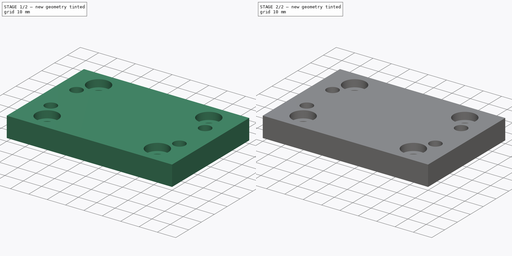
[diagram: build sequence overview — one tinted view per stage of 2, left to right]
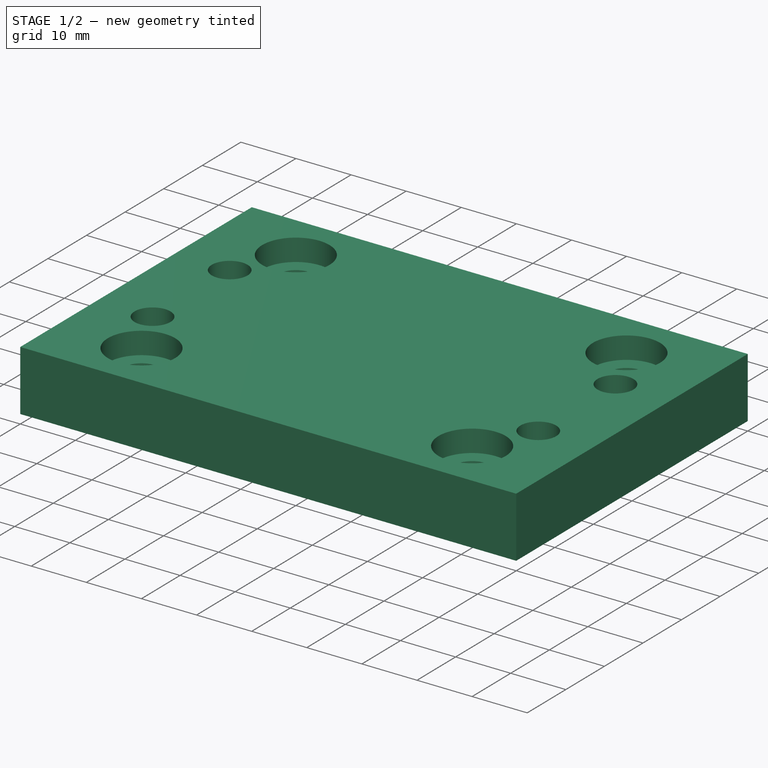
[diagram: stage 1 of 2 — iso view after this stage's code; geometry added in this stage tinted green]
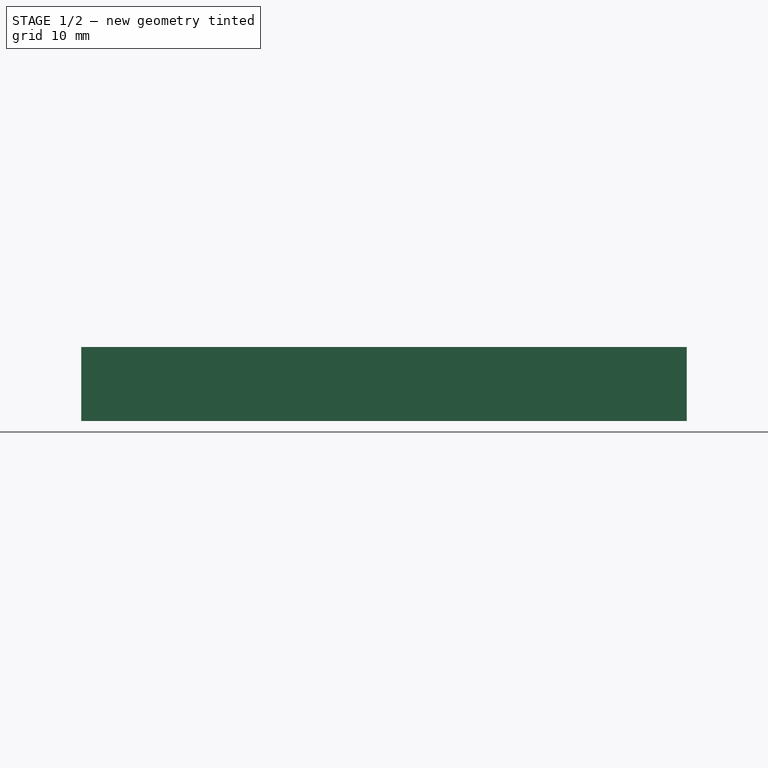
[diagram: stage 1 of 2 — front view after this stage's code; geometry added in this stage tinted green]
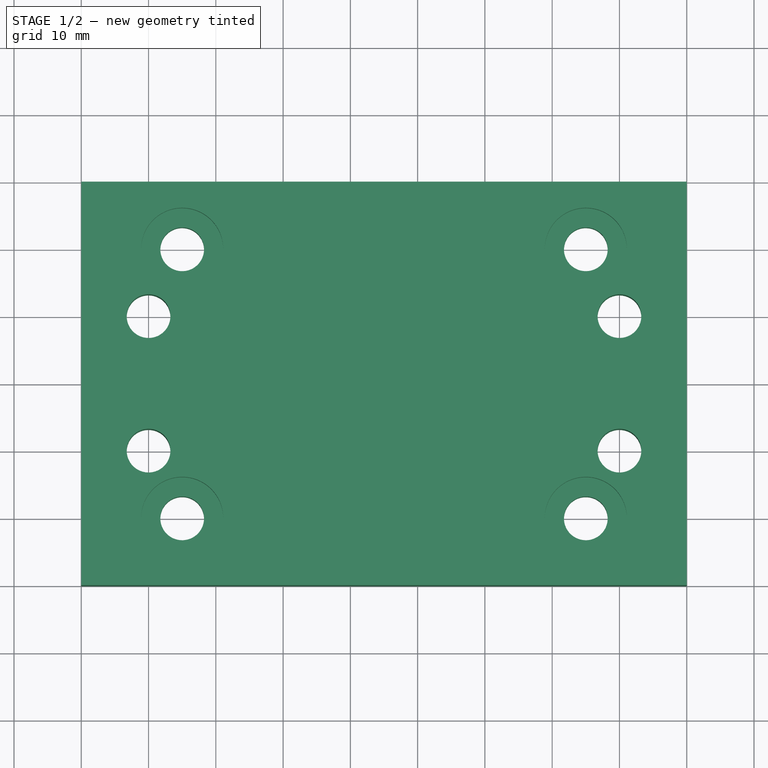
[diagram: stage 1 of 2 — top view after this stage's code; geometry added in this stage tinted green]
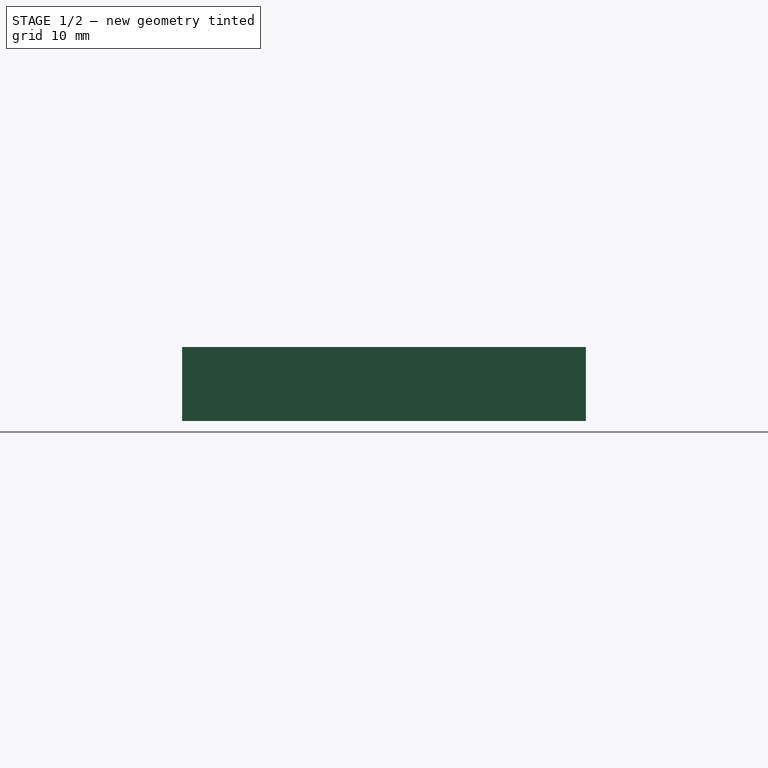
[diagram: stage 1 of 2 — right view after this stage's code; geometry added in this stage tinted green]
FCSTD DOCUMENT  (FreeCAD 0.19R23964 (Git))
Label: spindelmount_adapter1c
License: All rights reserved
LicenseURL: http://en.wikipedia.org/wiki/All_rights_reserved
objects: Sketcher::SketchObject×3, PartDesign::Pocket×2, PartDesign::Pad×1, PartDesign::Body×1
note: 10 computed .brp shape members not serialized (recipe doc carries the construction recipe); baked Part::Feature solids carry a one-line shape summary decoded from their .brp

FEATURE [Sketcher::SketchObject] Sketch
  FullyConstrained = false
  MapMode = 5
  Support = -> [XY_Plane]
  sketch-geometry (12):
    g0: LineSegment StartX=0 StartY=60 StartZ=0 EndX=90 EndY=60 EndZ=0
    g1: LineSegment StartX=90 StartY=60 StartZ=0 EndX=90 EndY=0 EndZ=0
    g2: LineSegment StartX=90 StartY=0 StartZ=0 EndX=0 EndY=0 EndZ=0
    g3: LineSegment StartX=0 StartY=0 StartZ=0 EndX=0 EndY=60 EndZ=0
    g4: Circle CenterX=10 CenterY=40 CenterZ=0 NormalX=0 NormalY=0 NormalZ=1 AngleXU=0 Radius=3.25
    g5: Circle CenterX=80 CenterY=40 CenterZ=0 NormalX=0 NormalY=0 NormalZ=1 AngleXU=0 Radius=3.25
    g6: Circle CenterX=10 CenterY=20 CenterZ=0 NormalX=0 NormalY=0 NormalZ=1 AngleXU=0 Radius=3.25
    g7: Circle CenterX=80 CenterY=20 CenterZ=0 NormalX=0 NormalY=0 NormalZ=1 AngleXU=0 Radius=3.25
    g8: Circle CenterX=15 CenterY=50 CenterZ=0 NormalX=0 NormalY=0 NormalZ=1 AngleXU=0 Radius=3.25
    g9: Circle CenterX=75 CenterY=50 CenterZ=0 NormalX=0 NormalY=0 NormalZ=1 AngleXU=0 Radius=3.25
    g10: Circle CenterX=75 CenterY=10 CenterZ=0 NormalX=0 NormalY=0 NormalZ=1 AngleXU=0 Radius=3.25
    g11: Circle CenterX=15 CenterY=10 CenterZ=0 NormalX=0 NormalY=0 NormalZ=1 AngleXU=0 Radius=3.25
  constraints (35):
    c: Coincident(g0,g1)
    c: Coincident(g1,g2)
    c: Coincident(g2,g3)
    c: Coincident(g3,g0)
    c: Horizontal(g0)
    c: Horizontal(g2)
    c: Vertical(g1)
    c: Vertical(g3)
    c: Coincident(g2,g-1)
    c: DistanceX(g0,g0) = 90
    c: DistanceY(g3,g3) = 60
    c: DistanceX(g2,g6) = 10
    c: DistanceY(g2,g6) = 20
    c: DistanceY(g6,g4) = 20
    c: DistanceX(g6,g4) = 0
    c: DistanceY(g4,g5) = 0
    c: DistanceX(g4,g5) = 70
    c: DistanceX(g7,g5) = 0
    c: DistanceY(g7,g6) = 0
    c: Radius(g4) = 3.25
    c: Equal(g4,g5)
    c: Equal(g4,g7)
    c: Equal(g4,g6)
    c: DistanceX(g2,g11) = 15
    c: DistanceY(g2,g11) = 10
    c: DistanceX(g11,g10) = 60
    c: DistanceY(g11,g10) = 0
    c: DistanceX(g8,g11) = 0
    c: DistanceX(g9,g10) = 0
    c: DistanceY(g11,g8) = 40
    c: DistanceY(g8,g9) = 0
    c: Radius(g11) = 3.25
    c: Equal(g11,g8)
    c: Equal(g11,g9)
    c: Equal(g11,g10)
FEATURE [PartDesign::Pad] Pad
  AllowMultiFace = false
  Direction = (1,1,1)
  Length = 11
  Length2 = 100
  Profile = -> Sketch
  Type = 0
FEATURE [Sketcher::SketchObject] Sketch001
  FullyConstrained = true
  MapMode = 5
  Placement = pos=(0,0,11) rot=(0,0,1;0rad)
  Support = -> [Pad]
  sketch-geometry (4):
    g0: Circle CenterX=15 CenterY=50 CenterZ=0 NormalX=0 NormalY=0 NormalZ=1 AngleXU=0 Radius=6.1
    g1: Circle CenterX=75 CenterY=50 CenterZ=0 NormalX=0 NormalY=0 NormalZ=1 AngleXU=0 Radius=6.1
    g2: Circle CenterX=75 CenterY=10 CenterZ=0 NormalX=0 NormalY=0 NormalZ=1 AngleXU=0 Radius=6.1
    g3: Circle CenterX=15 CenterY=10 CenterZ=0 NormalX=0 NormalY=0 NormalZ=1 AngleXU=0 Radius=6.1
  constraints (12):
    c: DistanceY(g-1,g3) = 10
    c: DistanceX(g-1,g3) = 15
    c: DistanceY(g3,g0) = 40
    c: DistanceX(g3,g0) = 0
    c: DistanceY(g3,g2) = 0
    c: DistanceY(g1,g0) = 0
    c: DistanceX(g3,g2) = 60
    c: DistanceX(g1,g2) = 0
    c: Radius(g0) = 6.1
    c: Equal(g0,g1)
    c: Equal(g0,g2)
    c: Equal(g0,g3)
FEATURE [PartDesign::Pocket] Pocket
  AllowMultiFace = false
  BaseFeature = -> Pad
  Length = 4
  Length2 = 100
  Profile = -> Sketch001
  Type = 0
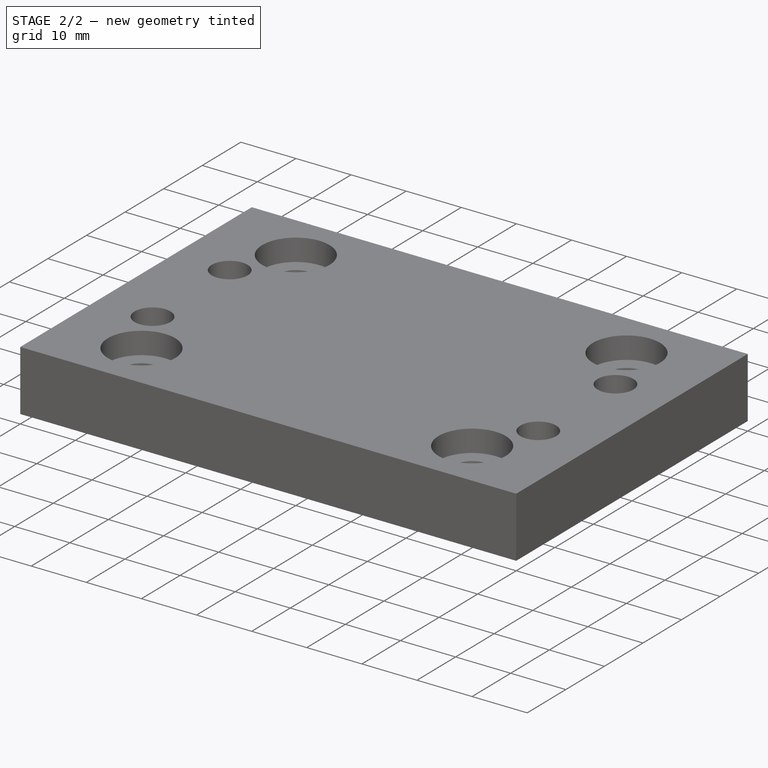
[diagram: stage 2 of 2 — iso view after this stage's code; geometry added in this stage tinted green]
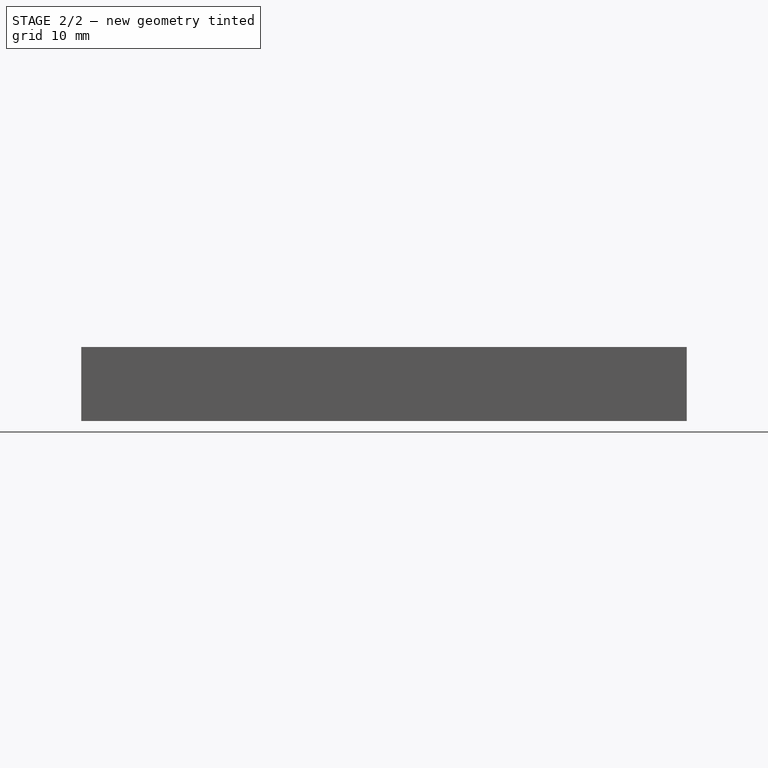
[diagram: stage 2 of 2 — front view after this stage's code; geometry added in this stage tinted green]
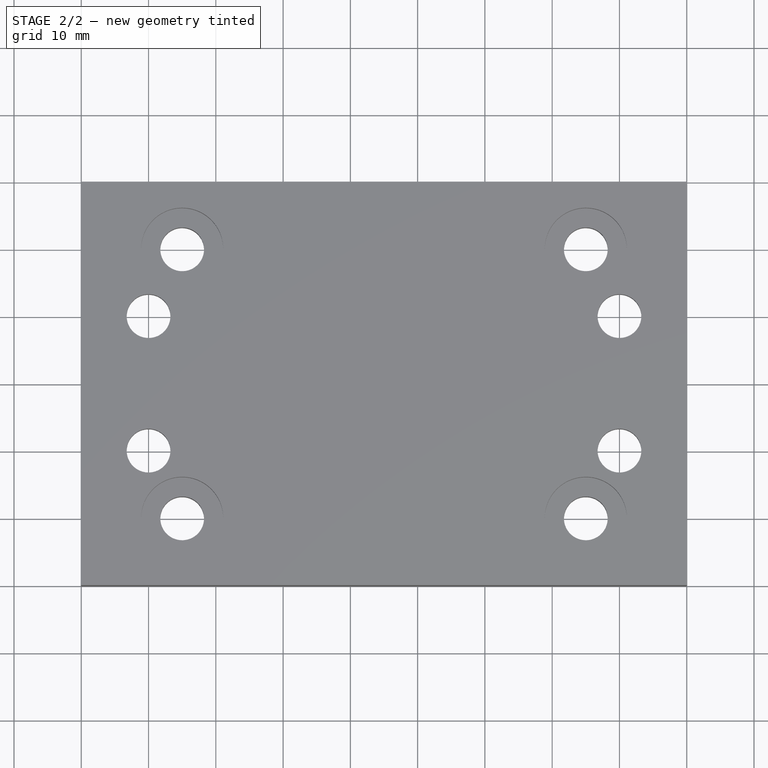
[diagram: stage 2 of 2 — top view after this stage's code; geometry added in this stage tinted green]
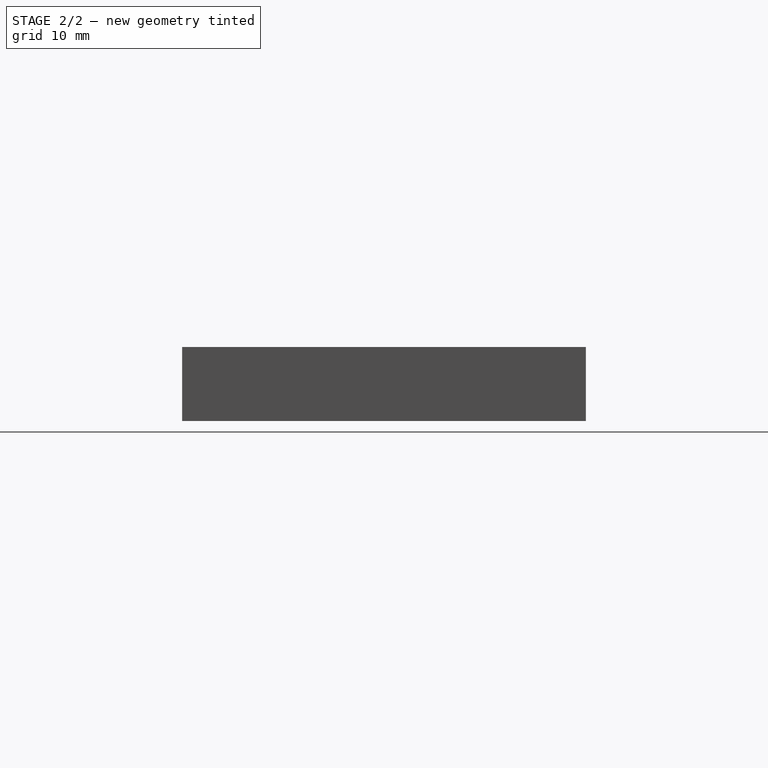
[diagram: stage 2 of 2 — right view after this stage's code; geometry added in this stage tinted green]
FEATURE [Sketcher::SketchObject] Sketch002
  FullyConstrained = true
  MapMode = 5
  Placement = pos=(0,0,0) rot=(1,0,0;3.14159rad)
  Support = -> [Pocket]
  sketch-geometry (28):
    g0: LineSegment StartX=15.1 StartY=-17.0555 StartZ=0 EndX=10 EndY=-14.111 EndZ=0
    g1: LineSegment StartX=10 StartY=-14.111 StartZ=0 EndX=4.9 EndY=-17.0555 EndZ=0
    g2: LineSegment StartX=4.9 StartY=-17.0555 StartZ=0 EndX=4.9 EndY=-22.9445 EndZ=0
    g3: LineSegment StartX=4.9 StartY=-22.9445 StartZ=0 EndX=10 EndY=-25.889 EndZ=0
    g4: LineSegment StartX=10 StartY=-25.889 StartZ=0 EndX=15.1 EndY=-22.9445 EndZ=0
    g5: LineSegment StartX=15.1 StartY=-22.9445 StartZ=0 EndX=15.1 EndY=-17.0555 EndZ=0
    g6: Circle CenterX=10 CenterY=-20 CenterZ=0 NormalX=0 NormalY=0 NormalZ=1 AngleXU=0 Radius=5.88897
    g7: LineSegment StartX=80 StartY=-14.111 StartZ=0 EndX=74.9 EndY=-17.0555 EndZ=0
    g8: LineSegment StartX=74.9 StartY=-17.0555 StartZ=0 EndX=74.9 EndY=-22.9445 EndZ=0
    g9: LineSegment StartX=74.9 StartY=-22.9445 StartZ=0 EndX=80 EndY=-25.889 EndZ=0
    g10: LineSegment StartX=80 StartY=-25.889 StartZ=0 EndX=85.1 EndY=-22.9445 EndZ=0
    g11: LineSegment StartX=85.1 StartY=-22.9445 StartZ=0 EndX=85.1 EndY=-17.0555 EndZ=0
    g12: LineSegment StartX=85.1 StartY=-17.0555 StartZ=0 EndX=80 EndY=-14.111 EndZ=0
    g13: Circle CenterX=80 CenterY=-20 CenterZ=0 NormalX=0 NormalY=0 NormalZ=1 AngleXU=0 Radius=5.88897
    g14: LineSegment StartX=10 StartY=-34.111 StartZ=0 EndX=4.9 EndY=-37.0555 EndZ=0
    g15: LineSegment StartX=4.9 StartY=-37.0555 StartZ=0 EndX=4.9 EndY=-42.9445 EndZ=0
    g16: LineSegment StartX=4.9 StartY=-42.9445 StartZ=0 EndX=10 EndY=-45.889 EndZ=0
    g17: LineSegment StartX=10 StartY=-45.889 StartZ=0 EndX=15.1 EndY=-42.9445 EndZ=0
    g18: LineSegment StartX=15.1 StartY=-42.9445 StartZ=0 EndX=15.1 EndY=-37.0555 EndZ=0
    g19: LineSegment StartX=15.1 StartY=-37.0555 StartZ=0 EndX=10 EndY=-34.111 EndZ=0
    g20: Circle CenterX=10 CenterY=-40 CenterZ=0 NormalX=0 NormalY=0 NormalZ=1 AngleXU=0 Radius=5.88897
    g21: LineSegment StartX=80 StartY=-34.111 StartZ=0 EndX=74.9 EndY=-37.0555 EndZ=0
    g22: LineSegment StartX=74.9 StartY=-37.0555 StartZ=0 EndX=74.9 EndY=-42.9445 EndZ=0
    g23: LineSegment StartX=74.9 StartY=-42.9445 StartZ=0 EndX=80 EndY=-45.889 EndZ=0
    g24: LineSegment StartX=80 StartY=-45.889 StartZ=0 EndX=85.1 EndY=-42.9445 EndZ=0
    g25: LineSegment StartX=85.1 StartY=-42.9445 StartZ=0 EndX=85.1 EndY=-37.0555 EndZ=0
    g26: LineSegment StartX=85.1 StartY=-37.0555 StartZ=0 EndX=80 EndY=-34.111 EndZ=0
    g27: Circle CenterX=80 CenterY=-40 CenterZ=0 NormalX=0 NormalY=0 NormalZ=1 AngleXU=0 Radius=5.88897
  constraints (68):
    c: Coincident(g0,g1)
    c: Coincident(g1,g2)
    c: Coincident(g2,g3)
    c: Coincident(g3,g4)
    c: Coincident(g4,g5)
    c: Coincident(g5,g0)
    c: Equal(g0, g1-g5) x5
    c: PointOnObject(g0,g6)
    c: PointOnObject(g1,g6)
    c: PointOnObject(g2,g6)
    c: PointOnObject(g3,g6)
    c: PointOnObject(g4,g6)
    c: PointOnObject(g5,g6)
    c: DistanceY(g6,g-1) = 20
    c: DistanceX(g-1,g6) = 10
    c: Distance(g2,g0) = 10.2
    c: Coincident(g7,g8)
    c: Coincident(g8,g9)
    c: Coincident(g9,g10)
    c: Coincident(g10,g11)
    c: Coincident(g11,g12)
    c: Coincident(g12,g7)
    c: Equal(g7, g8-g12) x5
    c: PointOnObject(g7,g13)
    c: PointOnObject(g8,g13)
    c: PointOnObject(g9,g13)
    c: PointOnObject(g10,g13)
    c: PointOnObject(g11,g13)
    c: PointOnObject(g12,g13)
    c: DistanceY(g13,g6) = 0
    c: DistanceX(g6,g13) = 70
    c: Distance(g8,g7) = 10.2
    c: Coincident(g14,g15)
    c: Coincident(g15,g16)
    c: Coincident(g16,g17)
    c: Coincident(g17,g18)
    c: Coincident(g18,g19)
    c: Coincident(g19,g14)
    c: Equal(g14, g15-g19) x5
    c: PointOnObject(g14,g20)
    c: PointOnObject(g15,g20)
    c: PointOnObject(g16,g20)
    c: PointOnObject(g17,g20)
    c: PointOnObject(g18,g20)
    c: PointOnObject(g19,g20)
    c: DistanceY(g20,g6) = 20
    c: DistanceX(g6,g20) = 0
    c: Distance(g15,g14) = 10.2
    c: Coincident(g21,g22)
    c: Coincident(g22,g23)
    c: Coincident(g23,g24)
    c: Coincident(g24,g25)
    c: Coincident(g25,g26)
    c: Coincident(g26,g21)
    c: Equal(g21, g22-g26) x5
    c: PointOnObject(g21,g27)
    c: PointOnObject(g22,g27)
    c: PointOnObject(g23,g27)
    c: PointOnObject(g24,g27)
    c: PointOnObject(g25,g27)
    c: PointOnObject(g26,g27)
    c: DistanceY(g20,g27) = 0
    c: DistanceX(g27,g13) = 0
    c: Distance(g23,g25) = 10.2
    c: Angle(g5) = 1.5708
    c: Angle(g18) = 1.5708
    c: Angle(g11) = 1.5708
    c: Angle(g25) = 1.5708
FEATURE [PartDesign::Pocket] Pocket001
  AllowMultiFace = false
  BaseFeature = -> Pocket
  Length = 5.25
  Length2 = 100
  Profile = -> Sketch002
  Type = 0
FEATURE [PartDesign::Body] Body
  Group = -> [Sketch,Pad,Sketch001,Pocket,Sketch002,Pocket001]
  Origin = -> Origin
  Tip = -> Pocket001
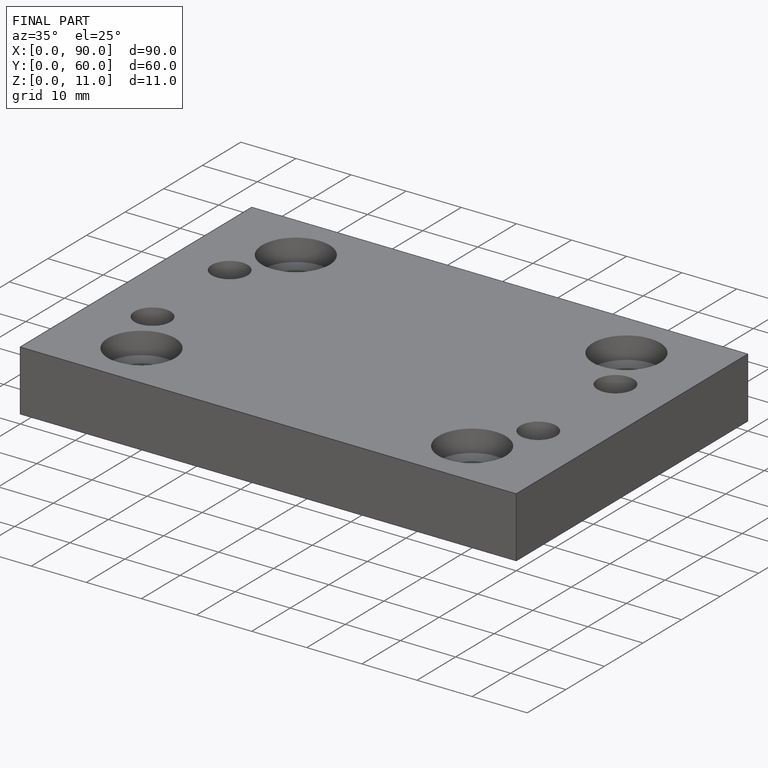
[diagram: finished part — iso view with bounding-box wireframe]
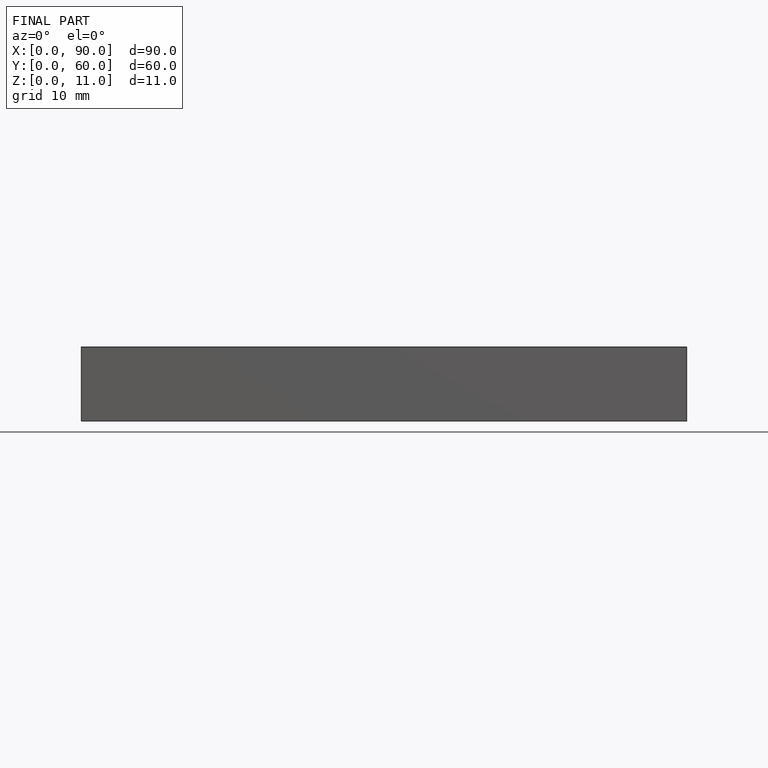
[diagram: finished part — front view with bounding-box wireframe]
